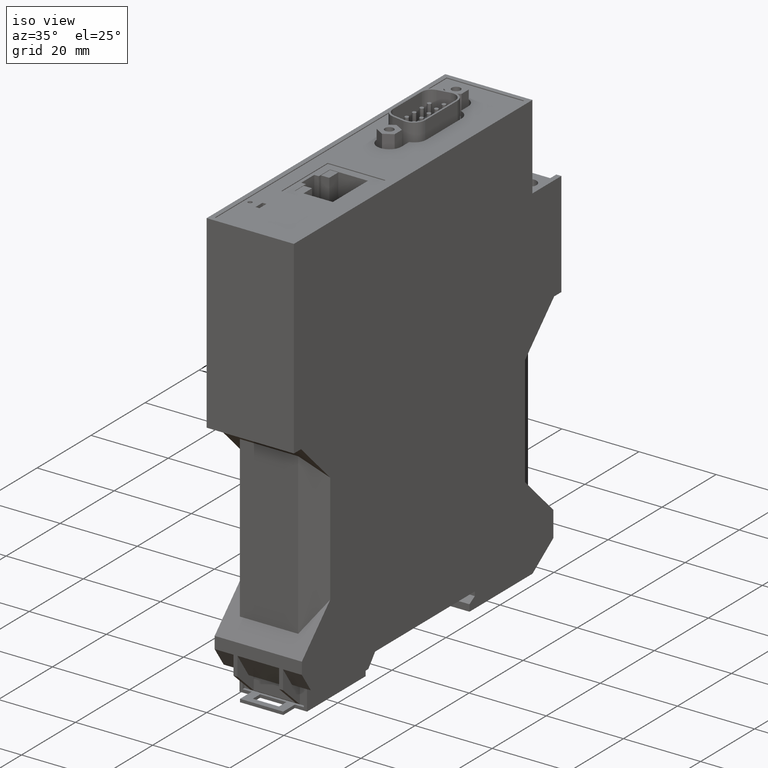
[diagram: clean part render]
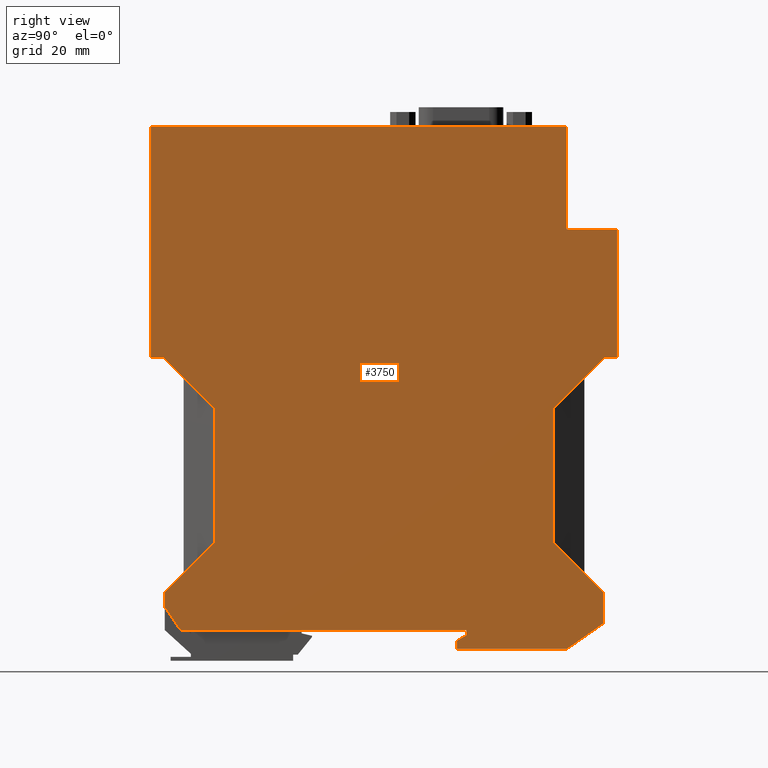
[diagram: tour spotlight — one face highlighted and labeled with its STEP entity id]
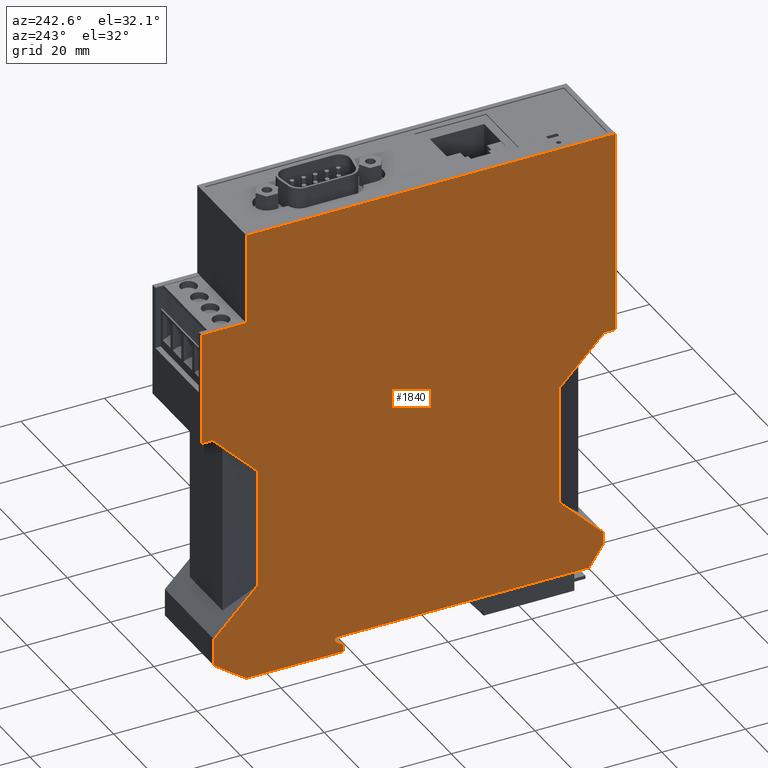
[diagram: tour spotlight — one face highlighted and labeled with its STEP entity id]
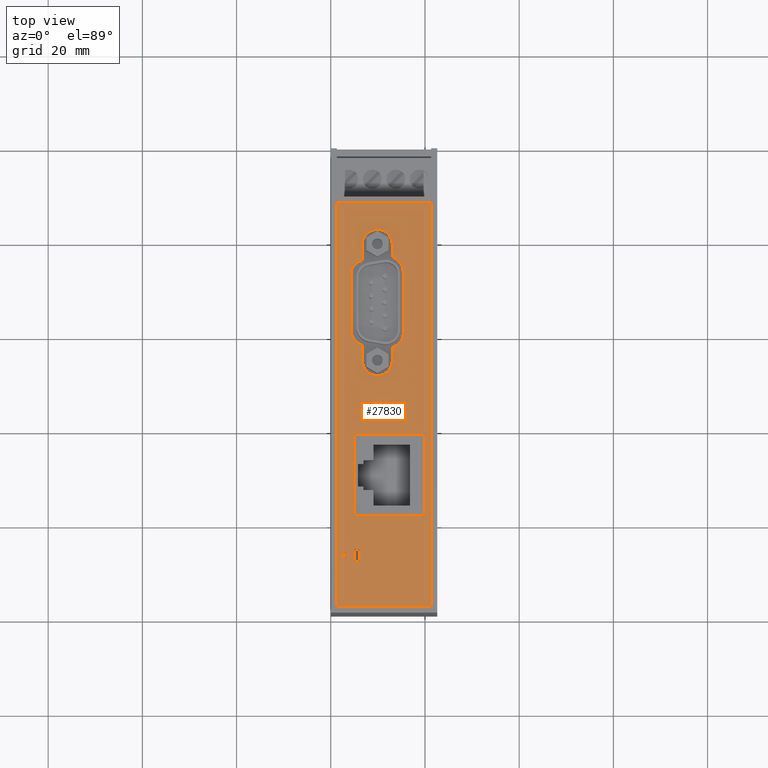
[diagram: tour spotlight — one face highlighted and labeled with its STEP entity id]
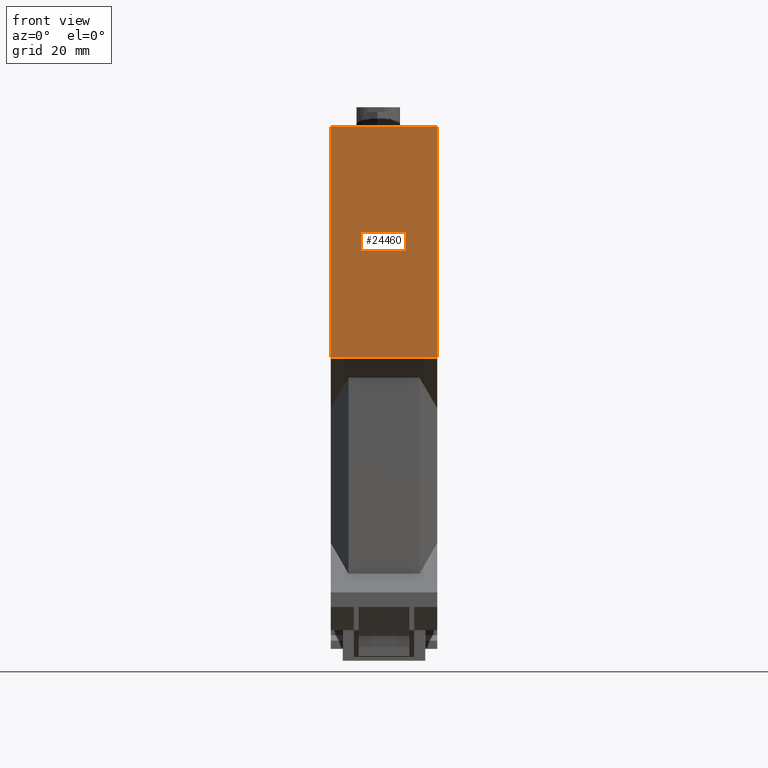
[diagram: tour spotlight — one face highlighted and labeled with its STEP entity id]
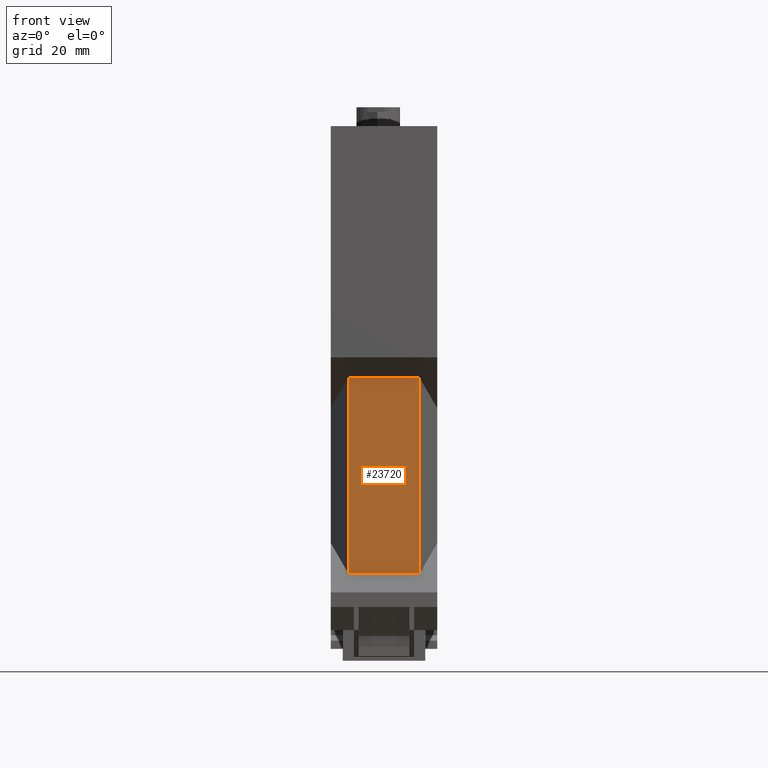
[diagram: tour spotlight — one face highlighted and labeled with its STEP entity id]
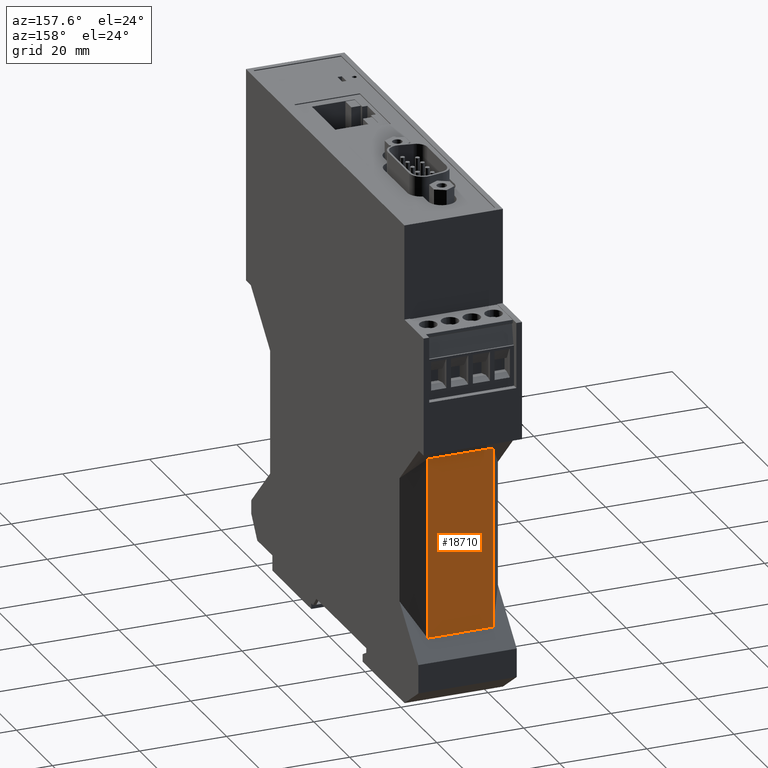
[diagram: tour spotlight — one face highlighted and labeled with its STEP entity id]
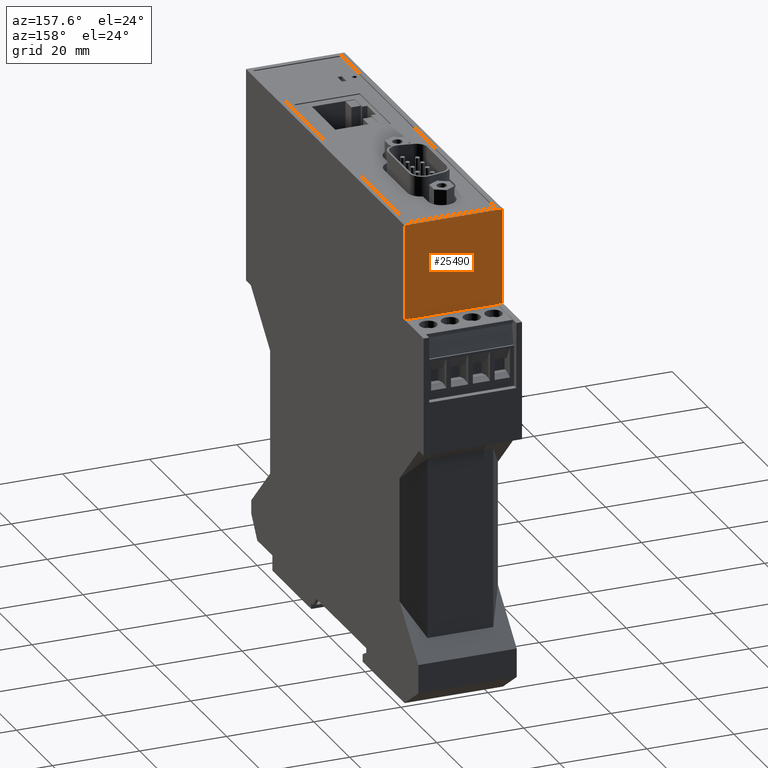
[diagram: tour spotlight — one face highlighted and labeled with its STEP entity id]
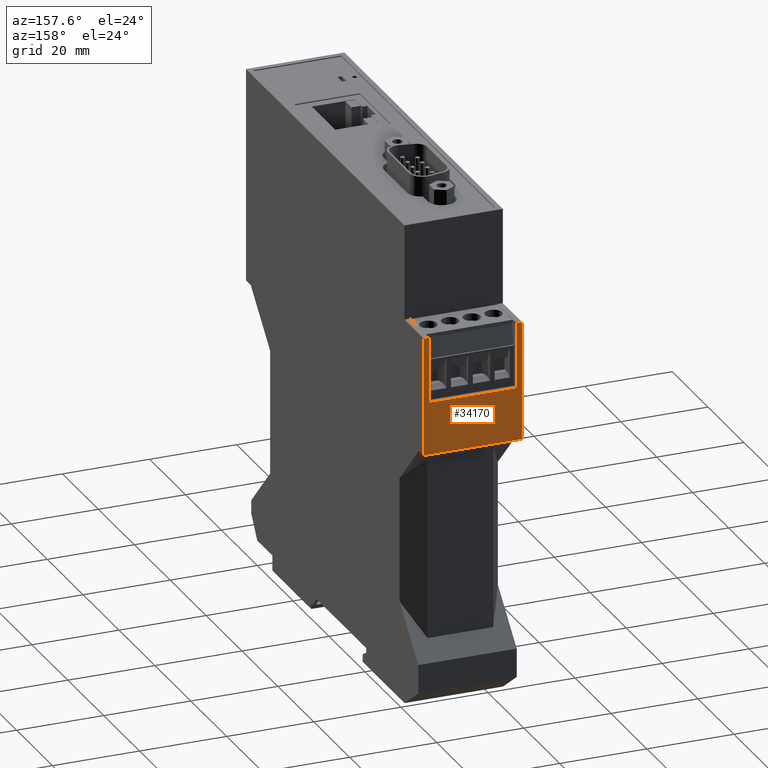
[diagram: tour spotlight — one face highlighted and labeled with its STEP entity id]
A machine part: a face-by-face anatomy tour. The part has 284 B-rep faces; the first image is the clean iso view, then the 8 largest visible faces are spotlighted one at a time (largest first), each with its STEP entity span.

Face 1 — right view, entity #3750. In plain terms, the highlighted planar face has unit normal (1, 0, 0).
Definition (entity closure, byte-faithful):
#1920=CARTESIAN_POINT('',(-57.4000000000029,25.7999999999959,22.6));
#1930=DIRECTION('',(0.,0.,1.));
#1940=DIRECTION('',(1.,0.,0.));
#1950=AXIS2_PLACEMENT_3D('',#1920,#1930,#1940);
#1960=PLANE('',#1950);
#1970=CARTESIAN_POINT('',(-77.1081632652817,24.,22.6));
#1980=DIRECTION('',(-0.564381899303651,0.825513822863314,0.));
#1990=VECTOR('',#1980,1.);
#2000=LINE('',#1970,#1990);
#2010=CARTESIAN_POINT('',(-60.7000000000009,5.04485342389671E-13,22.6));
#2020=VERTEX_POINT('',#2010);
#2030=CARTESIAN_POINT('',(-64.0500000000063,4.90000000001588,22.6));
#2040=VERTEX_POINT('',#2030);
#2050=EDGE_CURVE('',#2020,#2040,#2000,.T.);
#2060=ORIENTED_EDGE('',*,*,#2050,.F.);
#2070=CARTESIAN_POINT('',(-64.0500000000063,24.,22.6));
#2080=DIRECTION('',(0.,1.,0.));
#2090=VECTOR('',#2080,1.);
#2100=LINE('',#2070,#2090);
#2110=CARTESIAN_POINT('',(-64.0500000000063,7.99999999999596,22.6));
#2120=VERTEX_POINT('',#2110);
#2130=EDGE_CURVE('',#2040,#2120,#2100,.T.);
#2140=ORIENTED_EDGE('',*,*,#2130,.F.);
#2150=CARTESIAN_POINT('',(24.,96.049999999986,22.6));
#2160=DIRECTION('',(0.707106781186613,0.707106781186482,0.));
#2170=VECTOR('',#2160,1.);
#2180=LINE('',#2150,#2170);
#2190=CARTESIAN_POINT('',(-53.5500000000014,18.4999999999989,22.6));
#2200=VERTEX_POINT('',#2190);
#2210=EDGE_CURVE('',#2120,#2200,#2180,.T.);
#2220=ORIENTED_EDGE('',*,*,#2210,.F.);
#2230=CARTESIAN_POINT('',(-53.5500000000014,24.,22.6));
#2240=DIRECTION('',(0.,-1.,0.));
#2250=VECTOR('',#2240,1.);
#2260=LINE('',#2230,#2250);
#2270=CARTESIAN_POINT('',(-53.5500000000014,47.1000000000007,22.6));
#2280=VERTEX_POINT('',#2270);
#2290=EDGE_CURVE('',#2280,#2200,#2260,.T.);
#2300=ORIENTED_EDGE('',*,*,#2290,.T.);
#2310=CARTESIAN_POINT('',(24.,-30.45,22.6));
#2320=DIRECTION('',(-0.707106781186551,0.707106781186544,0.));
#2330=VECTOR('',#2320,1.);
#2340=LINE('',#2310,#2330);
#2350=CARTESIAN_POINT('',(-64.3500000000018,57.900000000001,22.6));
#2360=VERTEX_POINT('',#2350);
#2370=EDGE_CURVE('',#2280,#2360,#2340,.T.);
#2380=ORIENTED_EDGE('',*,*,#2370,.F.);
#2390=CARTESIAN_POINT('',(24.,57.8999999999923,22.6));
#2400=DIRECTION('',(-1.,9.89E-14,0.));
#2410=VECTOR('',#2400,1.);
#2420=LINE('',#2390,#2410);
#2430=CARTESIAN_POINT('',(-66.9999999999093,57.9000000000013,22.6));
#2440=VERTEX_POINT('',#2430);
#2450=EDGE_CURVE('',#2360,#2440,#2420,.T.);
#2460=ORIENTED_EDGE('',*,*,#2450,.F.);
#2470=CARTESIAN_POINT('',(-66.9999999999093,24.,22.6));
#2480=DIRECTION('',(0.,1.,0.));
#2490=VECTOR('',#2480,1.);
#2500=LINE('',#2470,#2490);
#2510=CARTESIAN_POINT('',(-66.9999999999093,107.000000000009,22.6));
#2520=VERTEX_POINT('',#2510);
#2530=EDGE_CURVE('',#2440,#2520,#2500,.T.);
#2540=ORIENTED_EDGE('',*,*,#2530,.F.);
#2550=CARTESIAN_POINT('',(24.,106.999999999941,22.6));
#2560=DIRECTION('',(-1.,7.38964445188328E-13,0.));
#2570=VECTOR('',#2560,1.);
#2580=LINE('',#2550,#2570);
#2590=CARTESIAN_POINT('',(21.2999999999832,106.999999999943,22.6));
#2600=VERTEX_POINT('',#2590);
#2610=EDGE_CURVE('',#2600,#2520,#2580,.T.);
#2620=ORIENTED_EDGE('',*,*,#2610,.T.);
#2630=CARTESIAN_POINT('',(21.3000000000036,24.,22.6));
#2640=DIRECTION('',(2.17588503380295E-24,-1.,-0.));
#2650=VECTOR('',#2640,1.);
#2660=LINE('',#2630,#2650);
#2670=CARTESIAN_POINT('',(21.2999999999832,85.1000000000079,22.6));
#2680=VERTEX_POINT('',#2670);
#2690=EDGE_CURVE('',#2600,#2680,#2660,.T.);
#2700=ORIENTED_EDGE('',*,*,#2690,.F.);
#2710=CARTESIAN_POINT('',(24.,85.1000000000079,22.6));
#2720=DIRECTION('',(-1.,-2.17588503379895E-24,0.));
#2730=VECTOR('',#2720,1.);
#2740=LINE('',#2710,#2730);
#2750=CARTESIAN_POINT('',(31.9999999999779,85.1000000000079,22.6));
#2760=VERTEX_POINT('',#2750);
#2770=EDGE_CURVE('',#2760,#2680,#2740,.T.);
#2780=ORIENTED_EDGE('',*,*,#2770,.T.);
#2790=CARTESIAN_POINT('',(32.0000000000223,24.,22.6));
#2800=DIRECTION('',(-7.27300000002176E-13,1.,0.));
#2810=VECTOR('',#2800,1.);
#2820=LINE('',#2790,#2810);
#2830=CARTESIAN_POINT('',(31.9999999999977,57.9000000000013,22.6));
#2840=VERTEX_POINT('',#2830);
#2850=EDGE_CURVE('',#2840,#2760,#2820,.T.);
#2860=ORIENTED_EDGE('',*,*,#2850,.T.);
#2870=CARTESIAN_POINT('',(24.,57.9000000000005,22.6));
#2880=DIRECTION('',(1.,9.89E-14,0.));
#2890=VECTOR('',#2880,1.);
#2900=LINE('',#2870,#2890);
#2910=CARTESIAN_POINT('',(29.3500000000902,57.900000000001,22.6));
#2920=VERTEX_POINT('',#2910);
#2930=EDGE_CURVE('',#2920,#2840,#2900,.T.);
#2940=ORIENTED_EDGE('',*,*,#2930,.T.);
#2950=CARTESIAN_POINT('',(24.,52.5499999999109,22.6));
#2960=DIRECTION('',(0.707106781186551,0.707106781186544,0.));
#2970=VECTOR('',#2960,1.);
#2980=LINE('',#2950,#2970);
#2990=CARTESIAN_POINT('',(18.5499999999986,47.0999999999095,22.6));
#3000=VERTEX_POINT('',#2990);
#3010=EDGE_CURVE('',#3000,#2920,#2980,.T.);
#3020=ORIENTED_EDGE('',*,*,#3010,.T.);
#3030=CARTESIAN_POINT('',(18.5499999999986,24.,22.6));
#3040=DIRECTION('',(0.,1.,0.));
#3050=VECTOR('',#3040,1.);
#3060=LINE('',#3030,#3050);
#3070=CARTESIAN_POINT('',(18.5499999999986,18.5000000000902,22.6));
#3080=VERTEX_POINT('',#3070);
#3090=EDGE_CURVE('',#3080,#3000,#3060,.T.);
#3100=ORIENTED_EDGE('',*,*,#3090,.T.);
#3110=CARTESIAN_POINT('',(24.,13.0500000000897,22.6));
#3120=DIRECTION('',(-0.707106781186613,0.707106781186482,0.));
#3130=VECTOR('',#3120,1.);
#3140=LINE('',#3110,#3130);
#3150=CARTESIAN_POINT('',(29.0500000000947,7.99999999999599,22.6));
#3160=VERTEX_POINT('',#3150);
#3170=EDGE_CURVE('',#3160,#3080,#3140,.T.);
#3180=ORIENTED_EDGE('',*,*,#3170,.T.);
#3190=CARTESIAN_POINT('',(29.0500000000947,24.,22.6));
#3200=DIRECTION('',(0.,1.,0.));
#3210=VECTOR('',#3200,1.);
#3220=LINE('',#3190,#3210);
#3230=CARTESIAN_POINT('',(29.0500000000947,1.40000000001705,22.6));
#3240=VERTEX_POINT('',#3230);
#3250=EDGE_CURVE('',#3240,#3160,#3220,.T.);
#3260=ORIENTED_EDGE('',*,*,#3250,.T.);
#3270=CARTESIAN_POINT('',(24.,-2.13604806800835,22.6));
#3280=DIRECTION('',(-0.819152044288986,-0.573576436351054,0.));
#3290=VECTOR('',#3280,1.);
#3300=LINE('',#3270,#3290);
#3310=CARTESIAN_POINT('',(21.338000763663,-4.00000000000013,22.6));
#3320=VERTEX_POINT('',#3310);
#3330=EDGE_CURVE('',#3240,#3320,#3300,.T.);
#3340=ORIENTED_EDGE('',*,*,#3330,.F.);
#3350=CARTESIAN_POINT('',(24.,-4.00000000000009,22.6));
#3360=DIRECTION('',(1.,4.80965890943096E-26,0.));
#3370=VECTOR('',#3360,1.);
#3380=LINE('',#3350,#3370);
#3390=CARTESIAN_POINT('',(-2.00000000000178,-4.00000000000013,22.6));
#3400=VERTEX_POINT('',#3390);
#3410=EDGE_CURVE('',#3400,#3320,#3380,.T.);
#3420=ORIENTED_EDGE('',*,*,#3410,.T.);
#3430=CARTESIAN_POINT('',(-2.00000000000178,24.,22.6));
#3440=DIRECTION('',(0.,1.,0.));
#3450=VECTOR('',#3440,1.);
#3460=LINE('',#3430,#3450);
#3470=CARTESIAN_POINT('',(-2.00000000000178,-2.25459663117339,22.6));
#3480=VERTEX_POINT('',#3470);
#3490=EDGE_CURVE('',#3400,#3480,#3460,.T.);
#3500=ORIENTED_EDGE('',*,*,#3490,.F.);
#3510=CARTESIAN_POINT('',(24.,12.7565103677565,22.6));
#3520=DIRECTION('',(-0.86602540378446,-0.499999999999964,0.));
#3530=VECTOR('',#3520,1.);
#3540=LINE('',#3510,#3530);
#3550=CARTESIAN_POINT('',(-1.76925141204265E-12,-1.09989609279425,22.6))
;
#3560=VERTEX_POINT('',#3550);
#3570=EDGE_CURVE('',#3560,#3480,#3540,.T.);
#3580=ORIENTED_EDGE('',*,*,#3570,.T.);
#3590=CARTESIAN_POINT('',(-1.77990955307905E-12,24.,22.6));
#3600=DIRECTION('',(4.E-16,-1.,-0.));
#3610=VECTOR('',#3600,1.);
#3620=LINE('',#3590,#3610);
#3630=CARTESIAN_POINT('',(-1.76925141204265E-12,-3.69482222595252E-13,
22.6));
#3640=VERTEX_POINT('',#3630);
#3650=EDGE_CURVE('',#3640,#3560,#3620,.T.);
#3660=ORIENTED_EDGE('',*,*,#3650,.T.);
#3670=CARTESIAN_POINT('',(24.,-7.14095449438901E-13,22.6));
#3680=DIRECTION('',(1.,-1.44E-14,-0.));
#3690=VECTOR('',#3680,1.);
#3700=LINE('',#3670,#3690);
#3710=EDGE_CURVE('',#2020,#3640,#3700,.T.);
#3720=ORIENTED_EDGE('',*,*,#3710,.T.);
#3730=EDGE_LOOP('',(#3720,#3660,#3580,#3500,#3420,#3340,#3260,#3180,
#3100,#3020,#2940,#2860,#2780,#2700,#2620,#2540,#2460,#2380,#2300,#2220,
#2140,#2060));
#3740=FACE_OUTER_BOUND('',#3730,.T.);
#3750=ADVANCED_FACE('',(#3740),#1960,.T.);

Face 2 — auxiliary view, entity #1840. In plain terms, the highlighted planar face has unit normal (-1, 0, 0).
Definition (entity closure, byte-faithful):
#10=CARTESIAN_POINT('',(24.,24.,0.));
#20=DIRECTION('',(0.,0.,-1.));
#30=DIRECTION('',(-1.,0.,0.));
#40=AXIS2_PLACEMENT_3D('',#10,#20,#30);
#50=PLANE('',#40);
#60=CARTESIAN_POINT('',(24.,-7.14095449438901E-13,0.));
#70=DIRECTION('',(1.,-1.44E-14,-0.));
#80=VECTOR('',#70,1.);
#90=LINE('',#60,#80);
#100=CARTESIAN_POINT('',(-60.7000000000028,5.04485342389671E-13,0.));
#110=VERTEX_POINT('',#100);
#120=CARTESIAN_POINT('',(-1.76925141204265E-12,-3.69482222595252E-13,0.)
);
#130=VERTEX_POINT('',#120);
#140=EDGE_CURVE('',#110,#130,#90,.T.);
#150=ORIENTED_EDGE('',*,*,#140,.F.);
#160=CARTESIAN_POINT('',(-1.76925141204265E-12,-3.69482222595252E-13,0.)
);
#170=DIRECTION('',(-3.23004482157597E-15,-1.,0.));
#180=VECTOR('',#170,1.);
#190=LINE('',#160,#180);
#200=CARTESIAN_POINT('',(-1.76925141204265E-12,-1.09989609279425,0.));
#210=VERTEX_POINT('',#200);
#220=EDGE_CURVE('',#130,#210,#190,.T.);
#230=ORIENTED_EDGE('',*,*,#220,.F.);
#240=CARTESIAN_POINT('',(-1.77280412572145E-12,-1.09989609279425,0.));
#250=DIRECTION('',(-0.86602540378446,-0.499999999999964,0.));
#260=VECTOR('',#250,1.);
#270=LINE('',#240,#260);
#280=CARTESIAN_POINT('',(-2.00000000000178,-2.25459663117339,0.));
#290=VERTEX_POINT('',#280);
#300=EDGE_CURVE('',#210,#290,#270,.T.);
#310=ORIENTED_EDGE('',*,*,#300,.F.);
#320=CARTESIAN_POINT('',(-2.00000000000288,24.,0.));
#330=DIRECTION('',(4.27899157140077E-14,-1.,-0.));
#340=VECTOR('',#330,1.);
#350=LINE('',#320,#340);
#360=CARTESIAN_POINT('',(-2.00000000000178,-4.00000000000004,0.));
#370=VERTEX_POINT('',#360);
#380=EDGE_CURVE('',#290,#370,#350,.T.);
#390=ORIENTED_EDGE('',*,*,#380,.F.);
#400=CARTESIAN_POINT('',(24.,-4.00000000000004,0.));
#410=DIRECTION('',(1.,4.80965890943096E-26,0.));
#420=VECTOR('',#410,1.);
#430=LINE('',#400,#420);
#440=CARTESIAN_POINT('',(21.3380007636733,-4.00000000000004,0.));
#450=VERTEX_POINT('',#440);
#460=EDGE_CURVE('',#370,#450,#430,.T.);
#470=ORIENTED_EDGE('',*,*,#460,.F.);
#480=CARTESIAN_POINT('',(24.,-2.13604806801552,0.));
#490=DIRECTION('',(0.819152044288986,0.573576436351054,0.));
#500=VECTOR('',#490,1.);
#510=LINE('',#480,#500);
#520=CARTESIAN_POINT('',(29.0500000000947,1.40000000001001,0.));
#530=VERTEX_POINT('',#520);
#540=EDGE_CURVE('',#450,#530,#510,.T.);
#550=ORIENTED_EDGE('',*,*,#540,.F.);
#560=CARTESIAN_POINT('',(29.0500000000947,1.40000000001025,0.));
#570=DIRECTION('',(2.15315980533829E-15,1.,0.));
#580=VECTOR('',#570,1.);
#590=LINE('',#560,#580);
#600=CARTESIAN_POINT('',(29.0500000000947,7.99999999999599,0.));
#610=VERTEX_POINT('',#600);
#620=EDGE_CURVE('',#530,#610,#590,.T.);
#630=ORIENTED_EDGE('',*,*,#620,.F.);
#640=CARTESIAN_POINT('',(24.,13.0500000000897,0.));
#650=DIRECTION('',(-0.707106781186613,0.707106781186482,0.));
#660=VECTOR('',#650,1.);
#670=LINE('',#640,#660);
#680=CARTESIAN_POINT('',(18.55000000009,18.4999999999987,0.));
#690=VERTEX_POINT('',#680);
#700=EDGE_CURVE('',#610,#690,#670,.T.);
#710=ORIENTED_EDGE('',*,*,#700,.F.);
#720=CARTESIAN_POINT('',(18.5500000000901,24.,0.));
#730=DIRECTION('',(4.E-15,1.,0.));
#740=VECTOR('',#730,1.);
#750=LINE('',#720,#740);
#760=CARTESIAN_POINT('',(18.5500000000902,47.1000000000011,0.));
#770=VERTEX_POINT('',#760);
#780=EDGE_CURVE('',#690,#770,#750,.T.);
#790=ORIENTED_EDGE('',*,*,#780,.F.);
#800=CARTESIAN_POINT('',(24.,52.5499999999109,0.));
#810=DIRECTION('',(0.707106781186551,0.707106781186544,0.));
#820=VECTOR('',#810,1.);
#830=LINE('',#800,#820);
#840=CARTESIAN_POINT('',(29.3500000000902,57.900000000001,0.));
#850=VERTEX_POINT('',#840);
#860=EDGE_CURVE('',#770,#850,#830,.T.);
#870=ORIENTED_EDGE('',*,*,#860,.F.);
#880=CARTESIAN_POINT('',(24.,57.9000000000005,0.));
#890=DIRECTION('',(1.,9.89E-14,0.));
#900=VECTOR('',#890,1.);
#910=LINE('',#880,#900);
#920=CARTESIAN_POINT('',(32.0000000000386,57.9000000000013,0.));
#930=VERTEX_POINT('',#920);
#940=EDGE_CURVE('',#850,#930,#910,.T.);
#950=ORIENTED_EDGE('',*,*,#940,.F.);
#960=CARTESIAN_POINT('',(32.0000000000633,24.,0.));
#970=DIRECTION('',(7.27300000002176E-13,-1.,-0.));
#980=VECTOR('',#970,1.);
#990=LINE('',#960,#980);
#1000=CARTESIAN_POINT('',(32.0000000000188,85.1000000000079,0.));
#1010=VERTEX_POINT('',#1000);
#1020=EDGE_CURVE('',#1010,#930,#990,.T.);
#1030=ORIENTED_EDGE('',*,*,#1020,.T.);
#1040=CARTESIAN_POINT('',(24.,85.1000000000079,0.));
#1050=DIRECTION('',(-1.,-2.17588503379895E-24,0.));
#1060=VECTOR('',#1050,1.);
#1070=LINE('',#1040,#1060);
#1080=CARTESIAN_POINT('',(21.3000000000241,85.1000000000079,0.));
#1090=VERTEX_POINT('',#1080);
#1100=EDGE_CURVE('',#1010,#1090,#1070,.T.);
#1110=ORIENTED_EDGE('',*,*,#1100,.F.);
#1120=CARTESIAN_POINT('',(21.3000000000241,24.,0.));
#1130=DIRECTION('',(-2.17588503380295E-24,1.,0.));
#1140=VECTOR('',#1130,1.);
#1150=LINE('',#1120,#1140);
#1160=CARTESIAN_POINT('',(21.3000000000241,106.999999999943,0.));
#1170=VERTEX_POINT('',#1160);
#1180=EDGE_CURVE('',#1090,#1170,#1150,.T.);
#1190=ORIENTED_EDGE('',*,*,#1180,.F.);
#1200=CARTESIAN_POINT('',(24.,106.999999999941,0.));
#1210=DIRECTION('',(-1.,7.38964445188328E-13,0.));
#1220=VECTOR('',#1210,1.);
#1230=LINE('',#1200,#1220);
#1240=CARTESIAN_POINT('',(-66.9999999999093,107.000000000009,0.));
#1250=VERTEX_POINT('',#1240);
#1260=EDGE_CURVE('',#1170,#1250,#1230,.T.);
#1270=ORIENTED_EDGE('',*,*,#1260,.F.);
#1280=CARTESIAN_POINT('',(-66.9999999999093,24.,0.));
#1290=DIRECTION('',(0.,1.,0.));
#1300=VECTOR('',#1290,1.);
#1310=LINE('',#1280,#1300);
#1320=CARTESIAN_POINT('',(-66.9999999999093,57.9000000000013,0.));
#1330=VERTEX_POINT('',#1320);
#1340=EDGE_CURVE('',#1330,#1250,#1310,.T.);
#1350=ORIENTED_EDGE('',*,*,#1340,.T.);
#1360=CARTESIAN_POINT('',(24.,57.8999999999923,0.));
#1370=DIRECTION('',(-1.,9.89E-14,0.));
#1380=VECTOR('',#1370,1.);
#1390=LINE('',#1360,#1380);
#1400=CARTESIAN_POINT('',(-64.3500000000018,57.900000000001,0.));
#1410=VERTEX_POINT('',#1400);
#1420=EDGE_CURVE('',#1410,#1330,#1390,.T.);
#1430=ORIENTED_EDGE('',*,*,#1420,.T.);
#1440=CARTESIAN_POINT('',(24.,-30.45,0.));
#1450=DIRECTION('',(0.707106781186551,-0.707106781186544,-0.));
#1460=VECTOR('',#1450,1.);
#1470=LINE('',#1440,#1460);
#1480=CARTESIAN_POINT('',(-53.5500000000017,47.1000000000011,0.));
#1490=VERTEX_POINT('',#1480);
#1500=EDGE_CURVE('',#1410,#1490,#1470,.T.);
#1510=ORIENTED_EDGE('',*,*,#1500,.F.);
#1520=CARTESIAN_POINT('',(-53.5500000000017,24.,0.));
#1530=DIRECTION('',(0.,1.,0.));
#1540=VECTOR('',#1530,1.);
#1550=LINE('',#1520,#1540);
#1560=CARTESIAN_POINT('',(-53.5500000000018,18.4999999999986,0.));
#1570=VERTEX_POINT('',#1560);
#1580=EDGE_CURVE('',#1570,#1490,#1550,.T.);
#1590=ORIENTED_EDGE('',*,*,#1580,.T.);
#1600=CARTESIAN_POINT('',(24.,96.049999999986,0.));
#1610=DIRECTION('',(-0.707106781186613,-0.707106781186482,0.));
#1620=VECTOR('',#1610,1.);
#1630=LINE('',#1600,#1620);
#1640=CARTESIAN_POINT('',(-64.0500000000063,7.99999999999596,0.));
#1650=VERTEX_POINT('',#1640);
#1660=EDGE_CURVE('',#1570,#1650,#1630,.T.);
#1670=ORIENTED_EDGE('',*,*,#1660,.F.);
#1680=CARTESIAN_POINT('',(-64.0500000000063,24.,0.));
#1690=DIRECTION('',(0.,-1.,0.));
#1700=VECTOR('',#1690,1.);
#1710=LINE('',#1680,#1700);
#1720=CARTESIAN_POINT('',(-64.0500000000063,4.90000000001316,0.));
#1730=VERTEX_POINT('',#1720);
#1740=EDGE_CURVE('',#1650,#1730,#1710,.T.);
#1750=ORIENTED_EDGE('',*,*,#1740,.F.);
#1760=CARTESIAN_POINT('',(-77.1081632652836,24.,0.));
#1770=DIRECTION('',(0.564381899303651,-0.825513822863314,-0.));
#1780=VECTOR('',#1770,1.);
#1790=LINE('',#1760,#1780);
#1800=EDGE_CURVE('',#1730,#110,#1790,.T.);
#1810=ORIENTED_EDGE('',*,*,#1800,.F.);
#1820=EDGE_LOOP('',(#1810,#1750,#1670,#1590,#1510,#1430,#1350,#1270,
#1190,#1110,#1030,#950,#870,#790,#710,#630,#550,#470,#390,#310,#230,#150
));
#1830=FACE_OUTER_BOUND('',#1820,.T.);
#1840=ADVANCED_FACE('',(#1830),#50,.T.);

Face 3 — top view, entity #27830. In plain terms, the highlighted planar face has unit normal (-0, 0, 1).
Definition (entity closure, byte-faithful):
#25570=CARTESIAN_POINT('',(-22.8499999999428,106.799999999976,11.3));
#25580=DIRECTION('',(7.38964445188328E-13,1.,-8.76330016597908E-25));
#25590=DIRECTION('',(1.,-7.38964445188328E-13,-0.));
#25600=AXIS2_PLACEMENT_3D('',#25570,#25580,#25590);
#25610=PLANE('',#25600);
#25620=CARTESIAN_POINT('',(24.,106.799999999941,4.91460000004642));
#25630=DIRECTION('',(1.,-7.38964445188328E-13,-0.));
#25640=VECTOR('',#25630,1.);
#25650=LINE('',#25620,#25640);
#25660=CARTESIAN_POINT('',(-46.415400000017,106.799999999993,
4.91460000004642));
#25670=VERTEX_POINT('',#25660);
#25680=CARTESIAN_POINT('',(-29.215400000017,106.799999999981,
4.91460000004642));
#25690=VERTEX_POINT('',#25680);
#25700=EDGE_CURVE('',#25670,#25690,#25650,.T.);
#25710=ORIENTED_EDGE('',*,*,#25700,.T.);
#25720=CARTESIAN_POINT('',(-46.415400000017,106.799999999993,0.));
#25730=DIRECTION('',(-6.47623918906154E-37,-8.76330016597908E-25,-1.));
#25740=VECTOR('',#25730,1.);
#25750=LINE('',#25720,#25740);
#25760=CARTESIAN_POINT('',(-46.415400000017,106.799999999993,
19.9146000000464));
#25770=VERTEX_POINT('',#25760);
#25780=EDGE_CURVE('',#25770,#25670,#25750,.T.);
#25790=ORIENTED_EDGE('',*,*,#25780,.T.);
#25800=CARTESIAN_POINT('',(24.,106.799999999941,19.9146000000464));
#25810=DIRECTION('',(-1.,7.38964445188328E-13,0.));
#25820=VECTOR('',#25810,1.);
#25830=LINE('',#25800,#25820);
#25840=CARTESIAN_POINT('',(-29.215400000017,106.799999999981,
19.9146000000464));
#25850=VERTEX_POINT('',#25840);
#25860=EDGE_CURVE('',#25850,#25770,#25830,.T.);
#25870=ORIENTED_EDGE('',*,*,#25860,.T.);
#25880=CARTESIAN_POINT('',(-29.215400000017,106.799999999981,0.));
#25890=DIRECTION('',(6.47623918906154E-37,8.76330016597908E-25,1.));
#25900=VECTOR('',#25890,1.);
#25910=LINE('',#25880,#25900);
#25920=EDGE_CURVE('',#25690,#25850,#25910,.T.);
#25930=ORIENTED_EDGE('',*,*,#25920,.T.);
#25940=EDGE_LOOP('',(#25930,#25870,#25790,#25710));
#25950=FACE_BOUND('',#25940,.T.);
#25960=CARTESIAN_POINT('',(-56.1333999999013,106.800000000001,0.));
#25970=DIRECTION('',(-6.62562871323012E-18,-8.76325120071037E-25,-1.));
#25980=VECTOR('',#25970,1.);
#25990=LINE('',#25960,#25980);
#26000=CARTESIAN_POINT('',(-56.1333999999013,106.800000000001,
6.05660000001346));
#26010=VERTEX_POINT('',#26000);
#26020=CARTESIAN_POINT('',(-56.1333999999013,106.800000000001,
5.05660000001347));
#26030=VERTEX_POINT('',#26020);
#26040=EDGE_CURVE('',#26010,#26030,#25990,.T.);
#26050=ORIENTED_EDGE('',*,*,#26040,.T.);
#26060=CARTESIAN_POINT('',(24.,106.799999999941,6.05660000001346));
#26070=DIRECTION('',(-1.,7.38964445188328E-13,6.62562860080833E-18));
#26080=VECTOR('',#26070,1.);
#26090=LINE('',#26060,#26080);
#26100=CARTESIAN_POINT('',(-53.5333999999013,106.799999999999,
6.05660000001346));
#26110=VERTEX_POINT('',#26100);
#26120=EDGE_CURVE('',#26110,#26010,#26090,.T.);
#26130=ORIENTED_EDGE('',*,*,#26120,.T.);
#26140=CARTESIAN_POINT('',(-53.5333999999013,106.799999999999,0.));
#26150=DIRECTION('',(6.62562871323012E-18,8.76325120071037E-25,1.));
#26160=VECTOR('',#26150,1.);
#26170=LINE('',#26140,#26160);
#26180=CARTESIAN_POINT('',(-53.5333999999013,106.799999999999,
5.05660000001347));
#26190=VERTEX_POINT('',#26180);
#26200=EDGE_CURVE('',#26190,#26110,#26170,.T.);
#26210=ORIENTED_EDGE('',*,*,#26200,.T.);
#26220=CARTESIAN_POINT('',(24.,106.799999999941,5.05660000001347));
#26230=DIRECTION('',(1.,-7.38964445188328E-13,-6.62562860080833E-18));
#26240=VECTOR('',#26230,1.);
#26250=LINE('',#26220,#26240);
#26260=EDGE_CURVE('',#26030,#26190,#26250,.T.);
#26270=ORIENTED_EDGE('',*,*,#26260,.T.);
#26280=EDGE_LOOP('',(#26270,#26210,#26130,#26050));
#26290=FACE_BOUND('',#26280,.T.);
#26300=CARTESIAN_POINT('',(24.,106.799999999941,6.69960000013016));
#26310=DIRECTION('',(1.,-7.38964445188328E-13,-0.));
#26320=VECTOR('',#26310,1.);
#26330=LINE('',#26300,#26320);
#26340=CARTESIAN_POINT('',(7.84833673789148,106.799999999953,
6.69960000013017));
#26350=VERTEX_POINT('',#26340);
#26360=CARTESIAN_POINT('',(11.2320000000061,106.799999999951,
6.69960000013016));
#26370=VERTEX_POINT('',#26360);
#26380=EDGE_CURVE('',#26350,#26370,#26330,.T.);
#26390=ORIENTED_EDGE('',*,*,#26380,.T.);
#26400=CARTESIAN_POINT('',(4.76219992162449,106.799999999956,
7.44551189256885));
#26410=DIRECTION('',(7.38964445188328E-13,1.,-8.76330016597908E-25));
#26420=DIRECTION('',(-1.,7.38964445188328E-13,-2.39016997792508E-40));
#26430=AXIS2_PLACEMENT_3D('',#26400,#26410,#26420);
#26440=CIRCLE('',#26430,3.175);
#26450=CARTESIAN_POINT('',(4.25060611806873,106.799999999956,
4.31200000011282));
#26460=VERTEX_POINT('',#26450);
#26470=EDGE_CURVE('',#26350,#26460,#26440,.T.);
#26480=ORIENTED_EDGE('',*,*,#26470,.F.);
#26490=CARTESIAN_POINT('',(24.,106.799999999941,4.31200000011282));
#26500=DIRECTION('',(1.,-7.38964445188328E-13,-0.));
#26510=VECTOR('',#26500,1.);
#26520=LINE('',#26490,#26510);
#26530=CARTESIAN_POINT('',(-6.52620614727227,106.799999999964,
4.31200000011282));
#26540=VERTEX_POINT('',#26530);
#26550=EDGE_CURVE('',#26540,#26460,#26520,.T.);
#26560=ORIENTED_EDGE('',*,*,#26550,.T.);
#26570=CARTESIAN_POINT('',(-7.03779993176679,106.799999999964,
7.44551189568088));
#26580=DIRECTION('',(7.38964445188328E-13,1.,-8.76330016597908E-25));
#26590=DIRECTION('',(-1.,7.38964445188328E-13,-2.39016997792508E-40));
#26600=AXIS2_PLACEMENT_3D('',#26570,#26580,#26590);
#26610=CIRCLE('',#26600,3.175);
#26620=CARTESIAN_POINT('',(-10.1239367472816,106.799999999967,
6.69960000013016));
#26630=VERTEX_POINT('',#26620);
#26640=EDGE_CURVE('',#26540,#26630,#26610,.T.);
#26650=ORIENTED_EDGE('',*,*,#26640,.F.);
#26660=CARTESIAN_POINT('',(24.,106.799999999941,6.69960000013016));
#26670=DIRECTION('',(1.,-7.38964445188328E-13,-0.));
#26680=VECTOR('',#26670,1.);
#26690=LINE('',#26660,#26680);
#26700=CARTESIAN_POINT('',(-13.5075999999939,106.799999999969,
6.69960000013016));
#26710=VERTEX_POINT('',#26700);
#26720=EDGE_CURVE('',#26710,#26630,#26690,.T.);
#26730=ORIENTED_EDGE('',*,*,#26720,.T.);
#26740=CARTESIAN_POINT('',(-13.5075999999939,106.799999999969,
9.87460000013017));
#26750=DIRECTION('',(7.38964445188328E-13,1.,-8.76330016597908E-25));
#26760=DIRECTION('',(-4.66293670342565E-15,-8.72884272163913E-25,-1.));
#26770=AXIS2_PLACEMENT_3D('',#26740,#26750,#26760);
#26780=CIRCLE('',#26770,3.175);
#26790=CARTESIAN_POINT('',(-13.5075999999939,106.799999999969,
13.0496000001302));
#26800=VERTEX_POINT('',#26790);
#26810=EDGE_CURVE('',#26710,#26800,#26780,.T.);
#26820=ORIENTED_EDGE('',*,*,#26810,.F.);
#26830=CARTESIAN_POINT('',(24.,106.799999999941,13.0496000001302));
#26840=DIRECTION('',(-1.,7.38964445188328E-13,0.));
#26850=VECTOR('',#26840,1.);
#26860=LINE('',#26830,#26850);
#26870=CARTESIAN_POINT('',(-10.7018259439431,106.799999999967,
13.0496000001302));
#26880=VERTEX_POINT('',#26870);
#26890=EDGE_CURVE('',#26880,#26800,#26860,.T.);
#26900=ORIENTED_EDGE('',*,*,#26890,.T.);
#26910=CARTESIAN_POINT('',(-7.63780009078459,106.799999999965,
12.2175119211528));
#26920=DIRECTION('',(7.38964445188328E-13,1.,-8.76330016597908E-25));
#26930=DIRECTION('',(-1.,7.38964445188328E-13,-2.390169977918E-40));
#26940=AXIS2_PLACEMENT_3D('',#26910,#26920,#26930);
#26950=CIRCLE('',#26940,3.175);
#26960=CARTESIAN_POINT('',(-7.63780009078645,106.799999999965,
15.3925119211528));
#26970=VERTEX_POINT('',#26960);
#26980=EDGE_CURVE('',#26880,#26970,#26950,.T.);
#26990=ORIENTED_EDGE('',*,*,#26980,.F.);
#27000=CARTESIAN_POINT('',(24.,106.799999999941,15.3925119211528));
#27010=DIRECTION('',(-1.,7.38964445188328E-13,0.));
#27020=VECTOR('',#27010,1.);
#27030=LINE('',#27000,#27020);
#27040=CARTESIAN_POINT('',(5.36220009098198,106.799999999955,
15.3925119211528));
#27050=VERTEX_POINT('',#27040);
#27060=EDGE_CURVE('',#27050,#26970,#27030,.T.);
#27070=ORIENTED_EDGE('',*,*,#27060,.T.);
#27080=CARTESIAN_POINT('',(5.36220009098198,106.799999999955,
12.2175119211528));
#27090=DIRECTION('',(7.38964445188328E-13,1.,-8.76330016597908E-25));
#27100=DIRECTION('',(-1.,7.38964445188328E-13,-2.39016997793215E-40));
#27110=AXIS2_PLACEMENT_3D('',#27080,#27090,#27100);
#27120=CIRCLE('',#27110,3.175);
#27130=CARTESIAN_POINT('',(8.42622594414051,106.799999999953,
13.0496000001302));
#27140=VERTEX_POINT('',#27130);
#27150=EDGE_CURVE('',#27050,#27140,#27120,.T.);
#27160=ORIENTED_EDGE('',*,*,#27150,.F.);
#27170=CARTESIAN_POINT('',(24.,106.799999999941,13.0496000001302));
#27180=DIRECTION('',(-1.,7.38964445188328E-13,0.));
#27190=VECTOR('',#27180,1.);
#27200=LINE('',#27170,#27190);
#27210=CARTESIAN_POINT('',(11.2320000000064,106.799999999951,
13.0496000001302));
#27220=VERTEX_POINT('',#27210);
#27230=EDGE_CURVE('',#27220,#27140,#27200,.T.);
#27240=ORIENTED_EDGE('',*,*,#27230,.T.);
#27250=CARTESIAN_POINT('',(11.2320000000061,106.799999999951,
9.87460000013017));
#27260=DIRECTION('',(7.38964445188328E-13,1.,-8.76330016597908E-25));
#27270=DIRECTION('',(7.105427357601E-15,8.71079358412773E-25,1.));
#27280=AXIS2_PLACEMENT_3D('',#27250,#27260,#27270);
#27290=CIRCLE('',#27280,3.175);
#27300=EDGE_CURVE('',#27220,#26370,#27290,.T.);
#27310=ORIENTED_EDGE('',*,*,#27300,.F.);
#27320=EDGE_LOOP('',(#27310,#27240,#27160,#27070,#26990,#26900,#26820,
#26730,#26650,#26560,#26480,#26390));
#27330=FACE_BOUND('',#27320,.T.);
#27340=CARTESIAN_POINT('',(-54.808000000017,106.8,2.71180000001566));
#27350=DIRECTION('',(7.38964445188328E-13,1.,-8.76330016597908E-25));
#27360=DIRECTION('',(-1.,7.38964445188328E-13,3.59138363842027E-39));
#27370=AXIS2_PLACEMENT_3D('',#27340,#27350,#27360);
#27380=CIRCLE('',#27370,0.54);
#27390=CARTESIAN_POINT('',(-55.348000000017,106.8,2.71180000001566));
#27400=VERTEX_POINT('',#27390);
#27410=CARTESIAN_POINT('',(-54.268000000017,106.799999999999,
2.71180000001566));
#27420=VERTEX_POINT('',#27410);
#27430=EDGE_CURVE('',#27400,#27420,#27380,.T.);
#27440=ORIENTED_EDGE('',*,*,#27430,.F.);
#27450=EDGE_CURVE('',#27420,#27400,#27380,.T.);
#27460=ORIENTED_EDGE('',*,*,#27450,.F.);
#27470=EDGE_LOOP('',(#27460,#27440));
#27480=FACE_BOUND('',#27470,.T.);
#27490=CARTESIAN_POINT('',(-65.7499999999784,106.800000000008,
21.3499999999959));
#27500=DIRECTION('',(-6.47576724517151E-37,-8.76330016597908E-25,-1.));
#27510=VECTOR('',#27500,1.);
#27520=LINE('',#27490,#27510);
#27530=CARTESIAN_POINT('',(-65.7499999999966,106.800000000008,
21.3499999999959));
#27540=VERTEX_POINT('',#27530);
#27550=CARTESIAN_POINT('',(-65.7499999999966,106.800000000008,
1.25000000015117));
#27560=VERTEX_POINT('',#27550);
#27570=EDGE_CURVE('',#27540,#27560,#27520,.T.);
#27580=ORIENTED_EDGE('',*,*,#27570,.F.);
#27590=CARTESIAN_POINT('',(-65.7499999999784,106.800000000008,
1.25000000015117));
#27600=DIRECTION('',(1.,-7.38964445188328E-13,2.32231206180843E-40));
#27610=VECTOR('',#27600,1.);
#27620=LINE('',#27590,#27610);
#27630=CARTESIAN_POINT('',(20.0499999999852,106.799999999944,
1.25000000015117));
#27640=VERTEX_POINT('',#27630);
#27650=EDGE_CURVE('',#27560,#27640,#27620,.T.);
#27660=ORIENTED_EDGE('',*,*,#27650,.F.);
#27670=CARTESIAN_POINT('',(20.0499999999852,106.799999999944,
1.25000000015117));
#27680=DIRECTION('',(6.47576724517151E-37,8.76330016597908E-25,1.));
#27690=VECTOR('',#27680,1.);
#27700=LINE('',#27670,#27690);
#27710=CARTESIAN_POINT('',(20.0499999999852,106.799999999944,
21.3499999999959));
#27720=VERTEX_POINT('',#27710);
#27730=EDGE_CURVE('',#27640,#27720,#27700,.T.);
#27740=ORIENTED_EDGE('',*,*,#27730,.F.);
#27750=CARTESIAN_POINT('',(20.0499999999852,106.799999999944,
21.3499999999959));
#27760=DIRECTION('',(-1.,7.38964445188328E-13,-2.32231206180843E-40));
#27770=VECTOR('',#27760,1.);
#27780=LINE('',#27750,#27770);
#27790=EDGE_CURVE('',#27720,#27540,#27780,.T.);
#27800=ORIENTED_EDGE('',*,*,#27790,.F.);
#27810=EDGE_LOOP('',(#27800,#27740,#27660,#27580));
#27820=FACE_OUTER_BOUND('',#27810,.T.);
#27830=ADVANCED_FACE('',(#25950,#26290,#27330,#27480,#27820),#25610,.T.)
;

Face 4 — front view, entity #24460. In plain terms, the highlighted planar face has unit normal (0, -1, 0).
Definition (entity closure, byte-faithful):
#1240=CARTESIAN_POINT('',(-66.9999999999093,107.000000000009,0.));
#1250=VERTEX_POINT('',#1240);
#1280=CARTESIAN_POINT('',(-66.9999999999093,24.,0.));
#1290=DIRECTION('',(0.,1.,0.));
#1300=VECTOR('',#1290,1.);
#1310=LINE('',#1280,#1300);
#1320=CARTESIAN_POINT('',(-66.9999999999093,57.9000000000013,0.));
#1330=VERTEX_POINT('',#1320);
#1340=EDGE_CURVE('',#1330,#1250,#1310,.T.);
#2430=CARTESIAN_POINT('',(-66.9999999999093,57.9000000000013,22.6));
#2440=VERTEX_POINT('',#2430);
#2470=CARTESIAN_POINT('',(-66.9999999999093,24.,22.6));
#2480=DIRECTION('',(0.,1.,0.));
#2490=VECTOR('',#2480,1.);
#2500=LINE('',#2470,#2490);
#2510=CARTESIAN_POINT('',(-66.9999999999093,107.000000000009,22.6));
#2520=VERTEX_POINT('',#2510);
#2530=EDGE_CURVE('',#2440,#2520,#2500,.T.);
#24120=CARTESIAN_POINT('',(-66.9999999999093,57.9000000000013,0.));
#24130=DIRECTION('',(0.,0.,1.));
#24140=VECTOR('',#24130,1.);
#24150=LINE('',#24120,#24140);
#24160=EDGE_CURVE('',#1330,#2440,#24150,.T.);
#24300=CARTESIAN_POINT('',(-66.9999999999093,-8.00000000000051,11.3));
#24310=DIRECTION('',(-1.,0.,0.));
#24320=DIRECTION('',(0.,1.,0.));
#24330=AXIS2_PLACEMENT_3D('',#24300,#24310,#24320);
#24340=PLANE('',#24330);
#24350=ORIENTED_EDGE('',*,*,#1340,.F.);
#24360=CARTESIAN_POINT('',(-66.9999999999093,107.000000000009,0.));
#24370=DIRECTION('',(0.,-8.76330016597908E-25,-1.));
#24380=VECTOR('',#24370,1.);
#24390=LINE('',#24360,#24380);
#24400=EDGE_CURVE('',#2520,#1250,#24390,.T.);
#24410=ORIENTED_EDGE('',*,*,#24400,.T.);
#24420=ORIENTED_EDGE('',*,*,#2530,.T.);
#24430=ORIENTED_EDGE('',*,*,#24160,.T.);
#24440=EDGE_LOOP('',(#24430,#24420,#24410,#24350));
#24450=FACE_OUTER_BOUND('',#24440,.T.);
#24460=ADVANCED_FACE('',(#24450),#24340,.T.);

Face 5 — front view, entity #23720. In plain terms, the highlighted planar face has unit normal (-0, -1, 0).
Definition (entity closure, byte-faithful):
#3920=CARTESIAN_POINT('',(-60.0500000000058,11.9999999999957,
18.8472232502649));
#3930=VERTEX_POINT('',#3920);
#3960=CARTESIAN_POINT('',(-60.0500000000057,24.,18.8472232502649));
#3970=DIRECTION('',(6.59999999999827E-15,1.,3.81051177665051E-15));
#3980=VECTOR('',#3970,1.);
#3990=LINE('',#3960,#3980);
#4000=CARTESIAN_POINT('',(-60.0500000000055,53.6000000000048,
18.8472232502651));
#4010=VERTEX_POINT('',#4000);
#4020=EDGE_CURVE('',#3930,#4010,#3990,.T.);
#4300=CARTESIAN_POINT('',(-60.0499999999987,53.599999999998,
3.75277674973081));
#4310=VERTEX_POINT('',#4300);
#4340=CARTESIAN_POINT('',(-60.0499999999989,24.,3.75277674973092));
#4350=DIRECTION('',(-6.60000000000173E-15,-1.,3.8105117766525E-15));
#4360=VECTOR('',#4350,1.);
#4370=LINE('',#4340,#4360);
#4380=CARTESIAN_POINT('',(-60.049999999999,12.0000000000026,
3.75277674973097));
#4390=VERTEX_POINT('',#4380);
#4400=EDGE_CURVE('',#4310,#4390,#4370,.T.);
#23370=CARTESIAN_POINT('',(-60.0499999999973,12.0000000000043,0.));
#23380=DIRECTION('',(4.52800000000003E-13,4.52799999999919E-13,-1.));
#23390=VECTOR('',#23380,1.);
#23400=LINE('',#23370,#23390);
#23410=EDGE_CURVE('',#3930,#4390,#23400,.T.);
#23560=CARTESIAN_POINT('',(-60.050000000002,68.5000000000004,
11.299999999981));
#23570=DIRECTION('',(-1.,6.6E-15,-4.528E-13));
#23580=DIRECTION('',(-4.528E-13,0.,1.));
#23590=AXIS2_PLACEMENT_3D('',#23560,#23570,#23580);
#23600=PLANE('',#23590);
#23610=ORIENTED_EDGE('',*,*,#4400,.T.);
#23620=CARTESIAN_POINT('',(-60.049999999997,53.5999999999963,0.));
#23630=DIRECTION('',(4.52799999999997E-13,-4.52799999999993E-13,-1.));
#23640=VECTOR('',#23630,1.);
#23650=LINE('',#23620,#23640);
#23660=EDGE_CURVE('',#4010,#4310,#23650,.T.);
#23670=ORIENTED_EDGE('',*,*,#23660,.T.);
#23680=ORIENTED_EDGE('',*,*,#4020,.T.);
#23690=ORIENTED_EDGE('',*,*,#23410,.F.);
#23700=EDGE_LOOP('',(#23690,#23680,#23670,#23610));
#23710=FACE_OUTER_BOUND('',#23700,.T.);
#23720=ADVANCED_FACE('',(#23710),#23600,.T.);

Face 6 — auxiliary view, entity #18710. In plain terms, the highlighted planar face has unit normal (0, -1, -0).
Definition (entity closure, byte-faithful):
#4680=CARTESIAN_POINT('',(25.0500000000874,12.0000000000026,
3.75277674973103));
#4690=VERTEX_POINT('',#4680);
#4720=CARTESIAN_POINT('',(25.0500000000873,24.,3.75277674973095));
#4730=DIRECTION('',(-6.60000000000277E-15,1.,-6.11991285341162E-15));
#4740=VECTOR('',#4730,1.);
#4750=LINE('',#4720,#4740);
#4760=CARTESIAN_POINT('',(25.0500000000871,53.599999999998,
3.75277674973077));
#4770=VERTEX_POINT('',#4760);
#4780=EDGE_CURVE('',#4690,#4770,#4750,.T.);
#5060=CARTESIAN_POINT('',(25.0500000000939,53.6000000000048,
18.8472232502124));
#5070=VERTEX_POINT('',#5060);
#5100=CARTESIAN_POINT('',(25.0500000000941,24.,18.8472232502123));
#5110=DIRECTION('',(-6.59999999999827E-15,1.,3.81051177665051E-15));
#5120=VECTOR('',#5110,1.);
#5130=LINE('',#5100,#5120);
#5140=CARTESIAN_POINT('',(25.0500000000942,11.9999999999957,
18.8472232502123));
#5150=VERTEX_POINT('',#5140);
#5160=EDGE_CURVE('',#5150,#5070,#5130,.T.);
#18360=CARTESIAN_POINT('',(25.0500000000854,53.5999999999963,0.));
#18370=DIRECTION('',(4.52799999999997E-13,4.52799999999993E-13,1.));
#18380=VECTOR('',#18370,1.);
#18390=LINE('',#18360,#18380);
#18400=EDGE_CURVE('',#4770,#5070,#18390,.T.);
#18550=CARTESIAN_POINT('',(25.0500000000904,68.5000000000004,
11.299999999981));
#18560=DIRECTION('',(-1.,-6.6E-15,4.528E-13));
#18570=DIRECTION('',(4.528E-13,0.,1.));
#18580=AXIS2_PLACEMENT_3D('',#18550,#18560,#18570);
#18590=PLANE('',#18580);
#18600=ORIENTED_EDGE('',*,*,#4780,.T.);
#18610=CARTESIAN_POINT('',(25.0500000000857,12.0000000000043,0.));
#18620=DIRECTION('',(-4.52800000000003E-13,4.52799999999919E-13,-1.));
#18630=VECTOR('',#18620,1.);
#18640=LINE('',#18610,#18630);
#18650=EDGE_CURVE('',#5150,#4690,#18640,.T.);
#18660=ORIENTED_EDGE('',*,*,#18650,.T.);
#18670=ORIENTED_EDGE('',*,*,#5160,.F.);
#18680=ORIENTED_EDGE('',*,*,#18400,.T.);
#18690=EDGE_LOOP('',(#18680,#18670,#18660,#18600));
#18700=FACE_OUTER_BOUND('',#18690,.T.);
#18710=ADVANCED_FACE('',(#18700),#18590,.F.);

Face 7 — auxiliary view, entity #25490. In plain terms, the highlighted planar face has unit normal (0, 1, 0).
Definition (entity closure, byte-faithful):
#1080=CARTESIAN_POINT('',(21.3000000000241,85.1000000000079,0.));
#1090=VERTEX_POINT('',#1080);
#1120=CARTESIAN_POINT('',(21.3000000000241,24.,0.));
#1130=DIRECTION('',(-2.17588503380295E-24,1.,0.));
#1140=VECTOR('',#1130,1.);
#1150=LINE('',#1120,#1140);
#1160=CARTESIAN_POINT('',(21.3000000000241,106.999999999943,0.));
#1170=VERTEX_POINT('',#1160);
#1180=EDGE_CURVE('',#1090,#1170,#1150,.T.);
#2590=CARTESIAN_POINT('',(21.2999999999832,106.999999999943,22.6));
#2600=VERTEX_POINT('',#2590);
#2630=CARTESIAN_POINT('',(21.3000000000036,24.,22.6));
#2640=DIRECTION('',(2.17588503380295E-24,-1.,-0.));
#2650=VECTOR('',#2640,1.);
#2660=LINE('',#2630,#2650);
#2670=CARTESIAN_POINT('',(21.2999999999832,85.1000000000079,22.6));
#2680=VERTEX_POINT('',#2670);
#2690=EDGE_CURVE('',#2600,#2680,#2660,.T.);
#21330=CARTESIAN_POINT('',(21.3000000000241,85.1000000000079,0.));
#21340=DIRECTION('',(-1.81046150293795E-12,2.21416216699985E-24,1.));
#21350=VECTOR('',#21340,1.);
#21360=LINE('',#21330,#21350);
#21370=CARTESIAN_POINT('',(21.3000000000217,85.1000000000079,
1.30000000015381));
#21380=VERTEX_POINT('',#21370);
#21390=EDGE_CURVE('',#1090,#21380,#21360,.T.);
#24940=CARTESIAN_POINT('',(21.3000000000241,106.999999999943,0.));
#24950=DIRECTION('',(-1.81046150293795E-12,2.21416216699985E-24,1.));
#24960=VECTOR('',#24950,1.);
#24970=LINE('',#24940,#24960);
#24980=EDGE_CURVE('',#1170,#2600,#24970,.T.);
#25120=CARTESIAN_POINT('',(21.300000000011,99.421597788003,
7.24395756602027));
#25130=DIRECTION('',(1.,2.17588503380295E-24,1.81046150293795E-12));
#25140=DIRECTION('',(1.81046150293795E-12,0.,-1.));
#25150=AXIS2_PLACEMENT_3D('',#25120,#25130,#25140);
#25160=PLANE('',#25150);
#25170=ORIENTED_EDGE('',*,*,#1180,.T.);
#25180=ORIENTED_EDGE('',*,*,#21390,.F.);
#25190=CARTESIAN_POINT('',(21.3000000000217,24.,1.30000000015381));
#25200=DIRECTION('',(2.17588503379894E-24,-1.,2.21419669665522E-24));
#25210=VECTOR('',#25200,1.);
#25220=LINE('',#25190,#25210);
#25230=CARTESIAN_POINT('',(21.3000000000217,85.0000000000079,
1.30000000015381));
#25240=VERTEX_POINT('',#25230);
#25250=EDGE_CURVE('',#21380,#25240,#25220,.T.);
#25260=ORIENTED_EDGE('',*,*,#25250,.F.);
#25270=CARTESIAN_POINT('',(21.3000000000241,85.0000000000079,0.));
#25280=DIRECTION('',(1.81046150293795E-12,0.,-1.));
#25290=VECTOR('',#25280,1.);
#25300=LINE('',#25270,#25290);
#25310=CARTESIAN_POINT('',(21.2999999999855,85.0000000000079,
21.3000000001629));
#25320=VERTEX_POINT('',#25310);
#25330=EDGE_CURVE('',#25320,#25240,#25300,.T.);
#25340=ORIENTED_EDGE('',*,*,#25330,.T.);
#25350=CARTESIAN_POINT('',(21.2999999999855,24.,21.3000000001629));
#25360=DIRECTION('',(-2.17588503379894E-24,1.,-2.21419669665522E-24));
#25370=VECTOR('',#25360,1.);
#25380=LINE('',#25350,#25370);
#25390=CARTESIAN_POINT('',(21.2999999999855,85.1000000000079,
21.3000000001629));
#25400=VERTEX_POINT('',#25390);
#25410=EDGE_CURVE('',#25320,#25400,#25380,.T.);
#25420=ORIENTED_EDGE('',*,*,#25410,.F.);
#25430=EDGE_CURVE('',#25400,#2680,#21360,.T.);
#25440=ORIENTED_EDGE('',*,*,#25430,.F.);
#25450=ORIENTED_EDGE('',*,*,#2690,.T.);
#25460=ORIENTED_EDGE('',*,*,#24980,.T.);
#25470=EDGE_LOOP('',(#25460,#25450,#25440,#25420,#25340,#25260,#25180,
#25170));
#25480=FACE_OUTER_BOUND('',#25470,.T.);
#25490=ADVANCED_FACE('',(#25480),#25160,.T.);

Face 8 — auxiliary view, entity #34170. In plain terms, the highlighted planar face has unit normal (0, 1, 0).
Definition (entity closure, byte-faithful):
#920=CARTESIAN_POINT('',(32.0000000000386,57.9000000000013,0.));
#930=VERTEX_POINT('',#920);
#960=CARTESIAN_POINT('',(32.0000000000633,24.,0.));
#970=DIRECTION('',(7.27300000002176E-13,-1.,-0.));
#980=VECTOR('',#970,1.);
#990=LINE('',#960,#980);
#1000=CARTESIAN_POINT('',(32.0000000000188,85.1000000000079,0.));
#1010=VERTEX_POINT('',#1000);
#1020=EDGE_CURVE('',#1010,#930,#990,.T.);
#2750=CARTESIAN_POINT('',(31.9999999999779,85.1000000000079,22.6));
#2760=VERTEX_POINT('',#2750);
#2790=CARTESIAN_POINT('',(32.0000000000223,24.,22.6));
#2800=DIRECTION('',(-7.27300000002176E-13,1.,0.));
#2810=VECTOR('',#2800,1.);
#2820=LINE('',#2790,#2810);
#2830=CARTESIAN_POINT('',(31.9999999999977,57.9000000000013,22.6));
#2840=VERTEX_POINT('',#2830);
#2850=EDGE_CURVE('',#2840,#2760,#2820,.T.);
#17640=CARTESIAN_POINT('',(31.9999999999912,70.0000000000079,
21.3000000001629));
#17650=VERTEX_POINT('',#17640);
#17800=CARTESIAN_POINT('',(32.0000000000274,70.0000000000079,
1.30000000017318));
#17810=VERTEX_POINT('',#17800);
#17840=CARTESIAN_POINT('',(32.0000000000298,70.0000000000079,0.));
#17850=DIRECTION('',(1.81046150293795E-12,-2.21416216699985E-24,-1.));
#17860=VECTOR('',#17850,1.);
#17870=LINE('',#17840,#17860);
#17880=EDGE_CURVE('',#17650,#17810,#17870,.T.);
#18130=CARTESIAN_POINT('',(32.0000000000386,57.9000000000013,0.));
#18140=DIRECTION('',(1.81046150293795E-12,1.79027249274477E-25,-1.));
#18150=VECTOR('',#18140,1.);
#18160=LINE('',#18130,#18150);
#18170=EDGE_CURVE('',#2840,#930,#18160,.T.);
#21420=CARTESIAN_POINT('',(32.0000000000188,85.1000000000079,0.));
#21430=DIRECTION('',(-1.81046150293795E-12,2.21416216699985E-24,1.));
#21440=VECTOR('',#21430,1.);
#21450=LINE('',#21420,#21440);
#21460=CARTESIAN_POINT('',(32.0000000000165,85.1000000000079,
1.30000000017318));
#21470=VERTEX_POINT('',#21460);
#21480=EDGE_CURVE('',#1010,#21470,#21450,.T.);
#33660=CARTESIAN_POINT('',(32.0000000000188,85.1000000000079,0.));
#33670=DIRECTION('',(-1.81046150293795E-12,2.21416216699985E-24,1.));
#33680=VECTOR('',#33670,1.);
#33690=LINE('',#33660,#33680);
#33700=CARTESIAN_POINT('',(31.9999999999803,85.1000000000079,
21.3000000001629));
#33710=VERTEX_POINT('',#33700);
#33720=EDGE_CURVE('',#33710,#2760,#33690,.T.);
#33920=CARTESIAN_POINT('',(32.0000000000843,-7.9999999999573,
1.25000000017277));
#33930=DIRECTION('',(1.,7.27300000002176E-13,1.81046150293795E-12));
#33940=DIRECTION('',(1.81046150293795E-12,0.,-1.));
#33950=AXIS2_PLACEMENT_3D('',#33920,#33930,#33940);
#33960=PLANE('',#33950);
#33970=CARTESIAN_POINT('',(32.0000000000247,24.,21.3000000001629));
#33980=DIRECTION('',(-7.27300000002176E-13,1.,-2.21416216699985E-24));
#33990=VECTOR('',#33980,1.);
#34000=LINE('',#33970,#33990);
#34010=EDGE_CURVE('',#17650,#33710,#34000,.T.);
#34020=ORIENTED_EDGE('',*,*,#34010,.T.);
#34030=ORIENTED_EDGE('',*,*,#17880,.F.);
#34040=CARTESIAN_POINT('',(32.0000000000609,24.,1.30000000017318));
#34050=DIRECTION('',(7.27300000002176E-13,-1.,3.53066373273061E-24));
#34060=VECTOR('',#34050,1.);
#34070=LINE('',#34040,#34060);
#34080=EDGE_CURVE('',#21470,#17810,#34070,.T.);
#34090=ORIENTED_EDGE('',*,*,#34080,.T.);
#34100=ORIENTED_EDGE('',*,*,#21480,.T.);
#34110=ORIENTED_EDGE('',*,*,#1020,.F.);
#34120=ORIENTED_EDGE('',*,*,#18170,.T.);
#34130=ORIENTED_EDGE('',*,*,#2850,.F.);
#34140=ORIENTED_EDGE('',*,*,#33720,.T.);
#34150=EDGE_LOOP('',(#34140,#34130,#34120,#34110,#34100,#34090,#34030,
#34020));
#34160=FACE_OUTER_BOUND('',#34150,.T.);
#34170=ADVANCED_FACE('',(#34160),#33960,.T.);